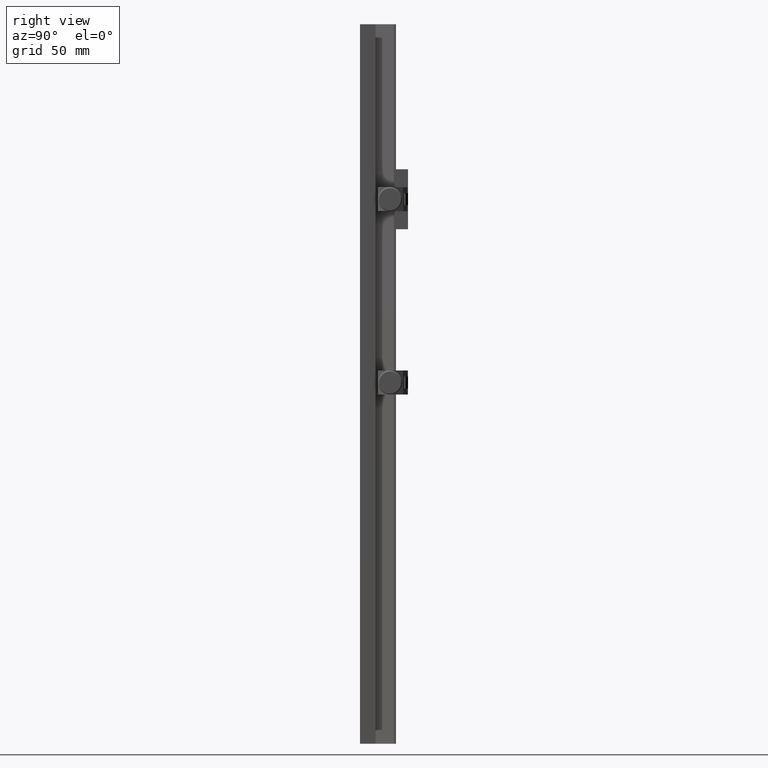
[diagram: clean part render]
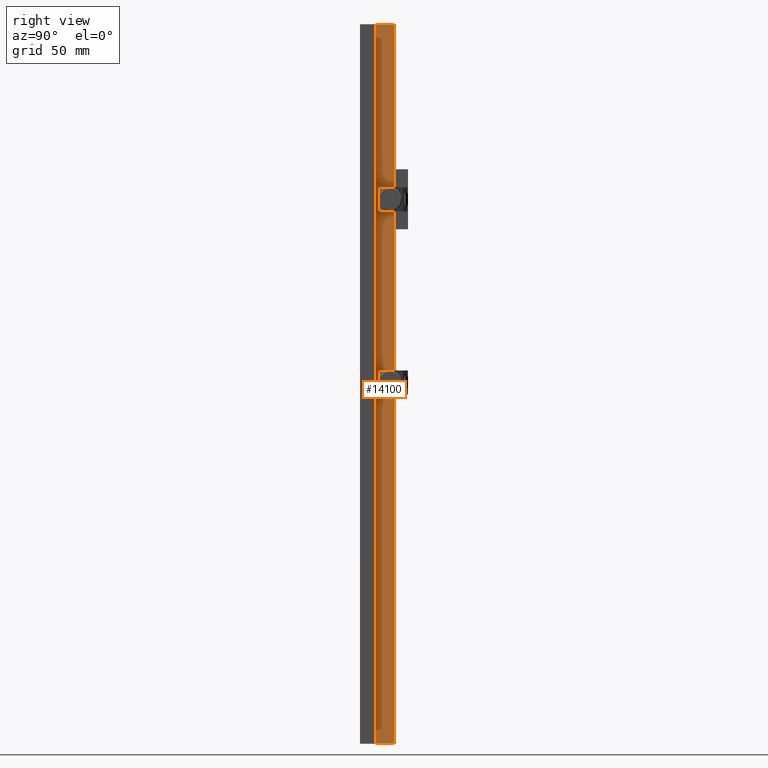
[diagram: same view with one face highlighted and labeled with its STEP entity id]
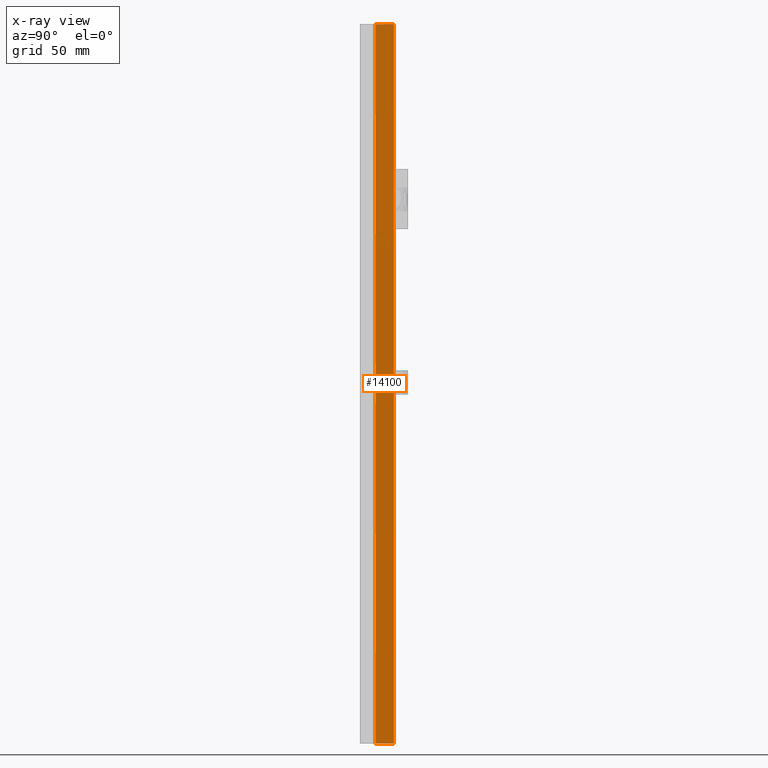
[diagram: x-ray of the same camera — body ghosted, the highlighted face saturated]
A machine part, right view. The second image highlights one B-rep face of the part: STEP entity #14100.
The next image is the same camera in x-ray: the body ghosted, the highlighted face saturated — about 0% of this face is hidden behind the body in this view.
In plain terms, the highlighted planar face has unit normal (-0.866, 0.5, 0).
Its self-contained STEP definition (entity closure, byte-faithful):
#2263 = EDGE_CURVE ( 'NONE', #82278, #106412, #94501, .T. ) ;
#3146 = CARTESIAN_POINT ( 'NONE',  ( 15.00000000000000000, 7.633974596215580277, 150.0000000000000000 ) ) ;
#3689 = ORIENTED_EDGE ( 'NONE', *, *, #79870, .F. ) ;
#5152 = ORIENTED_EDGE ( 'NONE', *, *, #30784, .T. ) ;
#7487 = DIRECTION ( 'NONE',  ( 0.000000000000000000, 0.000000000000000000, 1.000000000000000000 ) ) ;
#11000 = VECTOR ( 'NONE', #54303, 1000.000000000000000 ) ;
#12337 = VECTOR ( 'NONE', #89177, 1000.000000000000114 ) ;
#14100 = ADVANCED_FACE ( 'NONE', ( #14588 ), #91369, .F. ) ;
#14588 = FACE_OUTER_BOUND ( 'NONE', #43014, .T. ) ;
#21362 = CARTESIAN_POINT ( 'NONE',  ( 10.59252271188811889, 2.594419806801890142E-15, 150.0000000000000000 ) ) ;
#23972 = EDGE_CURVE ( 'NONE', #104803, #78706, #70130, .T. ) ;
#29637 = CARTESIAN_POINT ( 'NONE',  ( 15.00000000000000000, 7.633974596215569619, 150.0000000000000000 ) ) ;
#30784 = EDGE_CURVE ( 'NONE', #78706, #82278, #64680, .T. ) ;
#33573 = CARTESIAN_POINT ( 'NONE',  ( 10.59252271188811889, 2.594419806801890142E-15, -150.0000000000000000 ) ) ;
#41752 = CARTESIAN_POINT ( 'NONE',  ( 15.00000000000000000, 7.633974596215580277, -150.0000000000000000 ) ) ;
#43014 = EDGE_LOOP ( 'NONE', ( #5152, #74859, #3689, #99761 ) ) ;
#49945 = DIRECTION ( 'NONE',  ( -0.8660254037844382635, 0.5000000000000008882, 0.000000000000000000 ) ) ;
#54303 = DIRECTION ( 'NONE',  ( 0.000000000000000000, 0.000000000000000000, -1.000000000000000000 ) ) ;
#64432 = VECTOR ( 'NONE', #95165, 1000.000000000000114 ) ;
#64680 = LINE ( 'NONE', #33573, #12337 ) ;
#64740 = CARTESIAN_POINT ( 'NONE',  ( 10.59252271188811889, 2.594419806801890142E-15, 150.0000000000000000 ) ) ;
#68922 = DIRECTION ( 'NONE',  ( 0.000000000000000000, 0.000000000000000000, 1.000000000000000000 ) ) ;
#70130 = LINE ( 'NONE', #79359, #11000 ) ;
#74859 = ORIENTED_EDGE ( 'NONE', *, *, #2263, .T. ) ;
#78706 = VERTEX_POINT ( 'NONE', #80567 ) ;
#78842 = LINE ( 'NONE', #102810, #64432 ) ;
#79359 = CARTESIAN_POINT ( 'NONE',  ( 10.59252271188811889, 2.594419806801890142E-15, 150.0000000000000000 ) ) ;
#79870 = EDGE_CURVE ( 'NONE', #104803, #106412, #78842, .T. ) ;
#80567 = CARTESIAN_POINT ( 'NONE',  ( 10.59252271188811889, 2.594419806801890142E-15, -150.0000000000000000 ) ) ;
#82278 = VERTEX_POINT ( 'NONE', #41752 ) ;
#89177 = DIRECTION ( 'NONE',  ( 0.5000000000000011102, 0.8660254037844379305, 0.000000000000000000 ) ) ;
#90305 = VECTOR ( 'NONE', #68922, 1000.000000000000000 ) ;
#91369 = PLANE ( 'NONE',  #92332 ) ;
#92332 = AXIS2_PLACEMENT_3D ( 'NONE', #64740, #49945, #7487 ) ;
#94501 = LINE ( 'NONE', #29637, #90305 ) ;
#95165 = DIRECTION ( 'NONE',  ( 0.5000000000000011102, 0.8660254037844379305, 0.000000000000000000 ) ) ;
#99761 = ORIENTED_EDGE ( 'NONE', *, *, #23972, .T. ) ;
#102810 = CARTESIAN_POINT ( 'NONE',  ( 10.59252271188811889, 2.594419806801890142E-15, 150.0000000000000000 ) ) ;
#104803 = VERTEX_POINT ( 'NONE', #21362 ) ;
#106412 = VERTEX_POINT ( 'NONE', #3146 ) ;